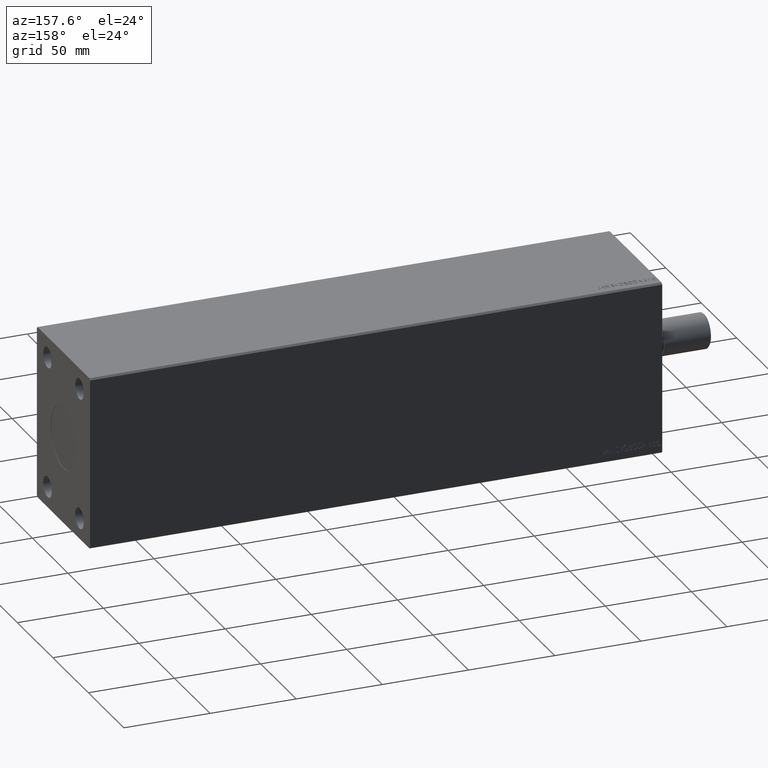
[diagram: clean part render]
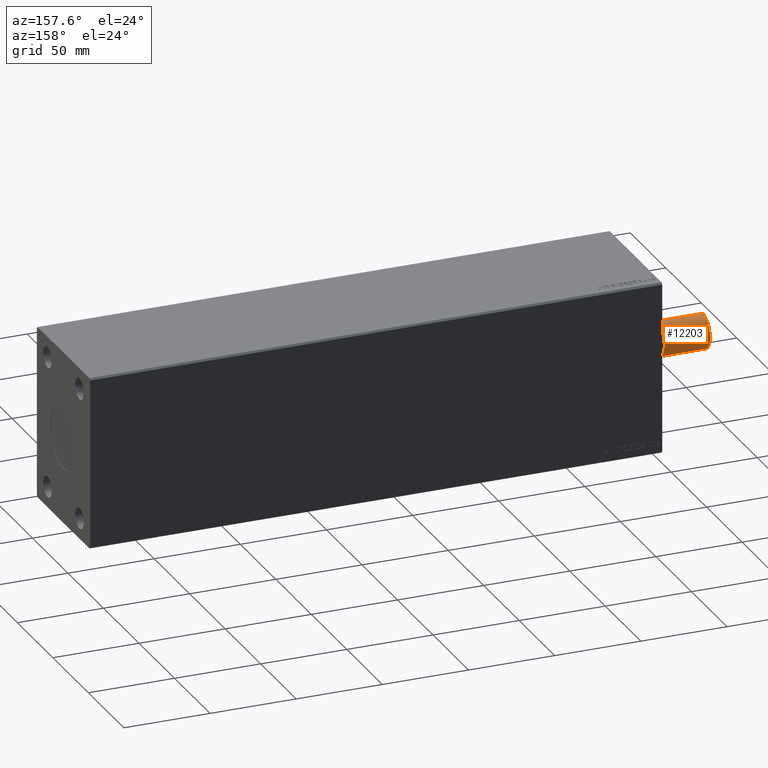
[diagram: same view with one face highlighted and labeled with its STEP entity id]
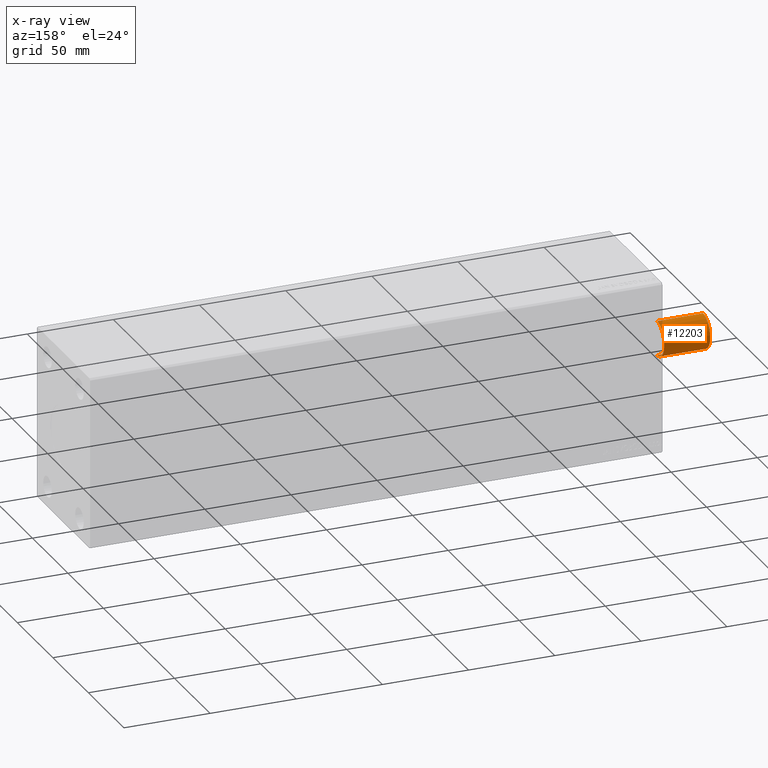
[diagram: x-ray of the same camera — body ghosted, the highlighted face saturated]
A machine part, auxiliary view. The second image highlights one B-rep face of the part: STEP entity #12203.
The next image is the same camera in x-ray: the body ghosted, the highlighted face saturated — about 1% of this face is hidden behind the body in this view.
In plain terms, the highlighted cylindrical surface (edge-blend (fillet) strip) has radius 10 mm, axis along (-1, 0, 0).
Its self-contained STEP definition (entity closure, byte-faithful):
#1644 = EDGE_CURVE ( 'NONE', #23157, #25603, #34928, .T. ) ;
#1893 = DIRECTION ( 'NONE',  ( -0.000000000000000000, -0.000000000000000000, -1.000000000000000000 ) ) ;
#1947 = ORIENTED_EDGE ( 'NONE', *, *, #1644, .F. ) ;
#2963 = EDGE_CURVE ( 'NONE', #43633, #21354, #38150, .T. ) ;
#3554 = DIRECTION ( 'NONE',  ( 1.000000000000000000, 0.000000000000000000, 0.000000000000000000 ) ) ;
#3983 = CARTESIAN_POINT ( 'NONE',  ( 0.000000000000000000, 0.000000000000000000, 0.7999999999999986011 ) ) ;
#7580 = VECTOR ( 'NONE', #1893, 1000.000000000000000 ) ;
#7690 = DIRECTION ( 'NONE',  ( 1.000000000000000000, 0.000000000000000000, 0.000000000000000000 ) ) ;
#8847 = CYLINDRICAL_SURFACE ( 'NONE', #30228, 10.00000000000000000 ) ;
#10147 = ORIENTED_EDGE ( 'NONE', *, *, #37965, .F. ) ;
#12203 = ADVANCED_FACE ( 'NONE', ( #15594 ), #8847, .T. ) ;
#12687 = ORIENTED_EDGE ( 'NONE', *, *, #2963, .T. ) ;
#15594 = FACE_OUTER_BOUND ( 'NONE', #25896, .T. ) ;
#18265 = VECTOR ( 'NONE', #27655, 1000.000000000000000 ) ;
#18768 = AXIS2_PLACEMENT_3D ( 'NONE', #3983, #38616, #3554 ) ;
#21354 = VERTEX_POINT ( 'NONE', #29988 ) ;
#22352 = CARTESIAN_POINT ( 'NONE',  ( 0.000000000000000000, 0.000000000000000000, 27.50000000000000000 ) ) ;
#23157 = VERTEX_POINT ( 'NONE', #42417 ) ;
#24716 = LINE ( 'NONE', #37777, #18265 ) ;
#25603 = VERTEX_POINT ( 'NONE', #40960 ) ;
#25896 = EDGE_LOOP ( 'NONE', ( #1947, #35318, #12687, #10147 ) ) ;
#27655 = DIRECTION ( 'NONE',  ( -0.000000000000000000, -0.000000000000000000, -1.000000000000000000 ) ) ;
#29325 = DIRECTION ( 'NONE',  ( -1.000000000000000000, 0.000000000000000000, 0.000000000000000000 ) ) ;
#29988 = CARTESIAN_POINT ( 'NONE',  ( -10.00000000000000000, 0.000000000000000000, 0.7999999999999986011 ) ) ;
#30228 = AXIS2_PLACEMENT_3D ( 'NONE', #22352, #39437, #29325 ) ;
#30654 = AXIS2_PLACEMENT_3D ( 'NONE', #35348, #41422, #7690 ) ;
#34757 = CARTESIAN_POINT ( 'NONE',  ( 10.00000000000000000, 1.224646799147353256E-15, 0.7999999999999986011 ) ) ;
#34928 = CIRCLE ( 'NONE', #30654, 10.00000000000000000 ) ;
#35318 = ORIENTED_EDGE ( 'NONE', *, *, #40659, .T. ) ;
#35348 = CARTESIAN_POINT ( 'NONE',  ( 0.000000000000000000, 0.000000000000000000, 27.50000000000000000 ) ) ;
#36287 = CARTESIAN_POINT ( 'NONE',  ( 10.00000000000000000, 1.224646799147353256E-15, 27.50000000000000000 ) ) ;
#37777 = CARTESIAN_POINT ( 'NONE',  ( -10.00000000000000000, 0.000000000000000000, 27.50000000000000000 ) ) ;
#37965 = EDGE_CURVE ( 'NONE', #25603, #21354, #24716, .T. ) ;
#38150 = CIRCLE ( 'NONE', #18768, 10.00000000000000000 ) ;
#38616 = DIRECTION ( 'NONE',  ( -0.000000000000000000, -0.000000000000000000, 1.000000000000000000 ) ) ;
#39437 = DIRECTION ( 'NONE',  ( -0.000000000000000000, -0.000000000000000000, -1.000000000000000000 ) ) ;
#39439 = LINE ( 'NONE', #36287, #7580 ) ;
#40659 = EDGE_CURVE ( 'NONE', #23157, #43633, #39439, .T. ) ;
#40960 = CARTESIAN_POINT ( 'NONE',  ( -10.00000000000000000, 0.000000000000000000, 27.50000000000000000 ) ) ;
#41422 = DIRECTION ( 'NONE',  ( 0.000000000000000000, 0.000000000000000000, 1.000000000000000000 ) ) ;
#42417 = CARTESIAN_POINT ( 'NONE',  ( 10.00000000000000000, 1.224646799147353256E-15, 27.50000000000000000 ) ) ;
#43633 = VERTEX_POINT ( 'NONE', #34757 ) ;